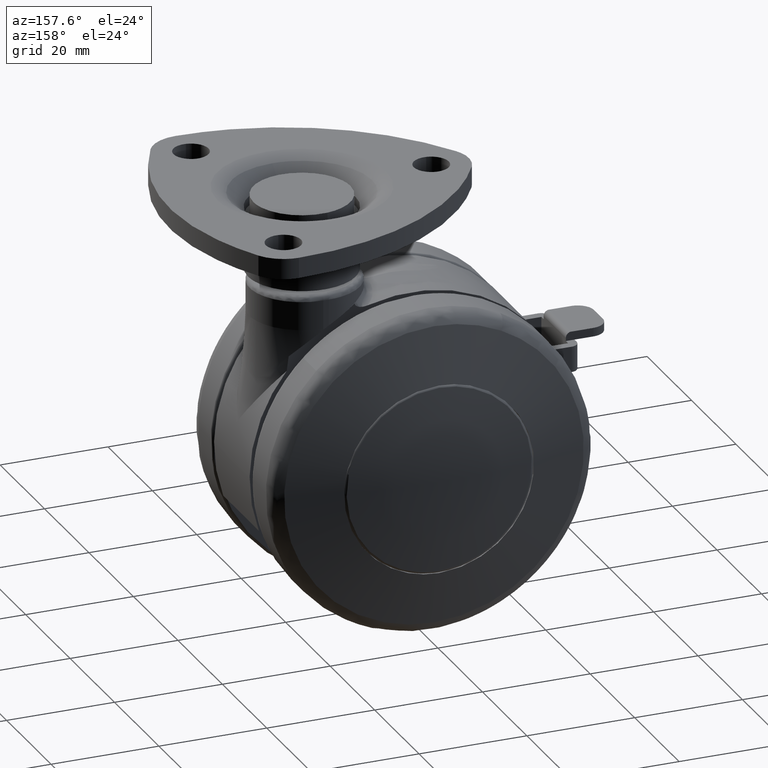
[diagram: clean part render]
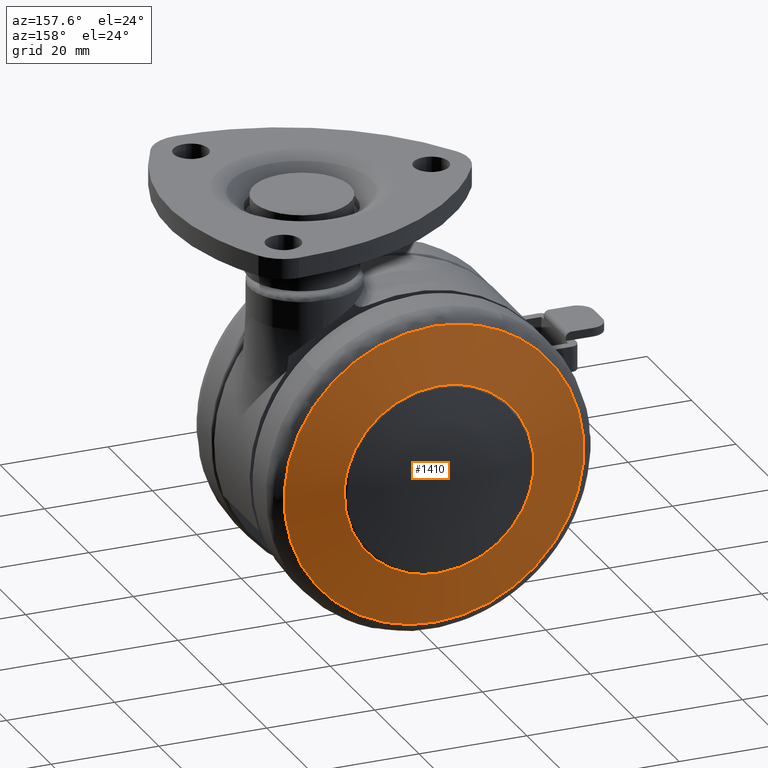
[diagram: same view with one face highlighted and labeled with its STEP entity id]
A machine part, auxiliary view. The second image highlights one B-rep face of the part: STEP entity #1410.
In plain terms, the highlighted face is a freeform B-spline surface patch.
Its self-contained STEP definition (entity closure, byte-faithful):
#70=CARTESIAN_POINT('',(17.476970833057621,-20.499999995121819,-2.077375868669970));
#71=VERTEX_POINT('',#70);
#72=CARTESIAN_POINT('',(0.0,-20.499999995122000,17.600000000000001));
#73=VERTEX_POINT('',#72);
#74=CARTESIAN_POINT('',(17.476970833057617,-20.499999995121819,-2.077375868669970));
#75=CARTESIAN_POINT('',(17.599999999999998,-20.499999995122000,-1.042331034302307));
#76=CARTESIAN_POINT('',(17.600000000000001,-20.499999995122000,-1.653219E-015));
#77=CARTESIAN_POINT('',(17.600000000000005,-20.499999995122003,17.600000000000005));
#78=CARTESIAN_POINT('',(0.0,-20.499999995122000,17.600000000000001));
#86=(BOUNDED_CURVE()B_SPLINE_CURVE(2,(#74,#75,#76,#77,#78),.UNSPECIFIED.,.F.,.U.)B_SPLINE_CURVE_WITH_KNOTS((3,2,3),(0.229562731331814,0.250000000000000,0.500000000000000),.UNSPECIFIED.)CURVE()GEOMETRIC_REPRESENTATION_ITEM()RATIONAL_B_SPLINE_CURVE((0.956027259518753,0.976056250384079,1.0,0.707106781186548,1.0))REPRESENTATION_ITEM(''));
#87=EDGE_CURVE('',#71,#73,#86,.T.);
#89=CARTESIAN_POINT('',(-17.567174160653622,-20.499999995122270,1.074426362521112));
#90=VERTEX_POINT('',#89);
#91=CARTESIAN_POINT('',(0.0,-20.499999995122000,17.600000000000001));
#92=CARTESIAN_POINT('',(-16.556453152873800,-20.499999995122000,17.599999999999998));
#93=CARTESIAN_POINT('',(-17.567174160653625,-20.499999995122266,1.074426362521112));
#101=(BOUNDED_CURVE()B_SPLINE_CURVE(2,(#91,#92,#93),.UNSPECIFIED.,.F.,.U.)B_SPLINE_CURVE_WITH_KNOTS((3,3),(0.500000000000000,0.739333236606037),.UNSPECIFIED.)CURVE()GEOMETRIC_REPRESENTATION_ITEM()RATIONAL_B_SPLINE_CURVE((1.0,0.719603671845665,0.976072629688334))REPRESENTATION_ITEM(''));
#102=EDGE_CURVE('',#73,#90,#101,.T.);
#173=CARTESIAN_POINT('',(0.0,-20.499999995122000,-17.600000000000001));
#174=VERTEX_POINT('',#173);
#175=CARTESIAN_POINT('',(0.0,-20.499999995122000,-17.600000000000001));
#176=CARTESIAN_POINT('',(15.631895671204923,-20.499999995121996,-17.600000000000001));
#177=CARTESIAN_POINT('',(17.476970833057617,-20.499999995121819,-2.077375868669970));
#185=(BOUNDED_CURVE()B_SPLINE_CURVE(2,(#175,#176,#177),.UNSPECIFIED.,.F.,.U.)B_SPLINE_CURVE_WITH_KNOTS((3,3),(0.0,0.229562731331814),.UNSPECIFIED.)CURVE()GEOMETRIC_REPRESENTATION_ITEM()RATIONAL_B_SPLINE_CURVE((1.0,0.731050530802469,0.956027259518753))REPRESENTATION_ITEM(''));
#186=EDGE_CURVE('',#174,#71,#185,.T.);
#220=CARTESIAN_POINT('',(-17.567174160653625,-20.499999995122266,1.074426362521112));
#221=CARTESIAN_POINT('',(-17.600000000000001,-20.499999995122003,0.537714628249566));
#222=CARTESIAN_POINT('',(-17.600000000000001,-20.499999995122000,-1.653219E-015));
#223=CARTESIAN_POINT('',(-17.600000000000005,-20.499999995122003,-17.600000000000005));
#224=CARTESIAN_POINT('',(0.0,-20.499999995122000,-17.600000000000001));
#232=(BOUNDED_CURVE()B_SPLINE_CURVE(2,(#220,#221,#222,#223,#224),.UNSPECIFIED.,.F.,.U.)B_SPLINE_CURVE_WITH_KNOTS((3,2,3),(0.739333236606037,0.750000000000000,1.0),.UNSPECIFIED.)CURVE()GEOMETRIC_REPRESENTATION_ITEM()RATIONAL_B_SPLINE_CURVE((0.976072629688334,0.987503109340883,1.0,0.707106781186548,1.0))REPRESENTATION_ITEM(''));
#233=EDGE_CURVE('',#90,#174,#232,.T.);
#1253=CARTESIAN_POINT('',(12.453677526877490,-18.215151407463232,24.856679944079090));
#1254=VERTEX_POINT('',#1253);
#1255=CARTESIAN_POINT('',(0.0,-18.215151576069498,27.801953607345450));
#1256=VERTEX_POINT('',#1255);
#1257=CARTESIAN_POINT('',(12.453677526877497,-18.215151407463228,24.856679944079090));
#1258=CARTESIAN_POINT('',(6.575114882392882,-18.215151576069498,27.801953607345446));
#1259=CARTESIAN_POINT('',(0.0,-18.215151576069498,27.801953607345450));
#1267=(BOUNDED_CURVE()B_SPLINE_CURVE(2,(#1257,#1258,#1259),.UNSPECIFIED.,.F.,.U.)B_SPLINE_CURVE_WITH_KNOTS((3,3),(0.423845389614883,0.500000000000000),.UNSPECIFIED.)CURVE()GEOMETRIC_REPRESENTATION_ITEM()RATIONAL_B_SPLINE_CURVE((0.875915174757439,0.910779324147275,1.0))REPRESENTATION_ITEM(''));
#1268=EDGE_CURVE('',#1254,#1256,#1267,.T.);
#1288=CARTESIAN_POINT('',(26.648778266500059,-18.215151407046889,-7.924092299576170));
#1289=VERTEX_POINT('',#1288);
#1303=CARTESIAN_POINT('',(0.0,-18.215151576069498,-27.801953607345450));
#1304=VERTEX_POINT('',#1303);
#1305=CARTESIAN_POINT('',(0.0,-18.215151576069498,-27.801953607345450));
#1306=CARTESIAN_POINT('',(20.738038010806793,-18.215151576069495,-27.801953607345450));
#1307=CARTESIAN_POINT('',(26.648778266500052,-18.215151407046886,-7.924092299576170));
#1315=(BOUNDED_CURVE()B_SPLINE_CURVE(2,(#1305,#1306,#1307),.UNSPECIFIED.,.F.,.U.)B_SPLINE_CURVE_WITH_KNOTS((3,3),(0.0,0.201473337934530),.UNSPECIFIED.)CURVE()GEOMETRIC_REPRESENTATION_ITEM()RATIONAL_B_SPLINE_CURVE((1.0,0.763959302189060,0.908365862589047))REPRESENTATION_ITEM(''));
#1316=EDGE_CURVE('',#1304,#1289,#1315,.T.);
#1318=CARTESIAN_POINT('',(0.0,-18.215151576069498,27.801953607345450));
#1319=CARTESIAN_POINT('',(-27.801953607345439,-18.215151576069495,27.801953607345439));
#1320=CARTESIAN_POINT('',(-27.801953607345450,-18.215151576069498,-1.653219E-015));
#1321=CARTESIAN_POINT('',(-27.801953607345439,-18.215151576069495,-27.801953607345439));
#1322=CARTESIAN_POINT('',(0.0,-18.215151576069498,-27.801953607345450));
#1330=(BOUNDED_CURVE()B_SPLINE_CURVE(2,(#1318,#1319,#1320,#1321,#1322),.UNSPECIFIED.,.F.,.U.)B_SPLINE_CURVE_WITH_KNOTS((3,2,3),(0.500000000000000,0.750000000000000,1.0),.UNSPECIFIED.)CURVE()GEOMETRIC_REPRESENTATION_ITEM()RATIONAL_B_SPLINE_CURVE((1.0,0.707106781186548,1.0,0.707106781186548,1.0))REPRESENTATION_ITEM(''));
#1331=EDGE_CURVE('',#1256,#1304,#1330,.T.);
#1353=CARTESIAN_POINT('',(26.648778266500052,-18.215151407046886,-7.924092299576170));
#1354=CARTESIAN_POINT('',(27.801953607345453,-18.215151576069498,-4.045955657473345));
#1355=CARTESIAN_POINT('',(27.801953607345450,-18.215151576069498,-1.653219E-015));
#1356=CARTESIAN_POINT('',(27.801953607345446,-18.215151576069495,17.166896753802490));
#1357=CARTESIAN_POINT('',(12.453677526877490,-18.215151407463232,24.856679944079083));
#1365=(BOUNDED_CURVE()B_SPLINE_CURVE(2,(#1353,#1354,#1355,#1356,#1357),.UNSPECIFIED.,.F.,.U.)B_SPLINE_CURVE_WITH_KNOTS((3,2,3),(0.201473337934530,0.250000000000000,0.423845389614883),.UNSPECIFIED.)CURVE()GEOMETRIC_REPRESENTATION_ITEM()RATIONAL_B_SPLINE_CURVE((0.908365862589047,0.943147478997488,1.0,0.796327457039273,0.875915174757439))REPRESENTATION_ITEM(''));
#1366=EDGE_CURVE('',#1289,#1254,#1365,.T.);
#1374=CARTESIAN_POINT('',(-29.809327307294737,-13.072937862196540,-29.809394484519281));
#1375=CARTESIAN_POINT('',(-15.231509735195463,-17.438577366083301,-30.463088120752563));
#1376=CARTESIAN_POINT('',(15.230824602223839,-17.438577366083301,-30.463088120752563));
#1377=CARTESIAN_POINT('',(29.808043987401366,-13.073322170776407,-29.809452029369886));
#1378=CARTESIAN_POINT('',(-30.463022481277982,-17.438597474091434,-15.231545565823192));
#1379=CARTESIAN_POINT('',(-15.573013680460109,-21.999999999999972,-15.573048775241899));
#1380=CARTESIAN_POINT('',(15.572313186200150,-21.999999999999972,-15.573048775241899));
#1381=CARTESIAN_POINT('',(30.461712308713469,-17.438998822670261,-15.231575613999606));
#1382=CARTESIAN_POINT('',(-30.463022481277982,-17.438597474091434,15.231547623658559));
#1383=CARTESIAN_POINT('',(-15.573013680460109,-21.999999999999972,15.573050879215550));
#1384=CARTESIAN_POINT('',(15.572313186200160,-21.999999999999972,15.573050879215540));
#1385=CARTESIAN_POINT('',(30.461712308713469,-17.438998822670261,15.231577671839021));
#1386=CARTESIAN_POINT('',(-29.809327134452012,-13.072936707877846,29.809398339030164));
#1387=CARTESIAN_POINT('',(-15.231509644942253,-17.438576160583139,30.463092055916043));
#1388=CARTESIAN_POINT('',(15.230824511974690,-17.438576160583139,30.463092055916032));
#1389=CARTESIAN_POINT('',(29.808043814565718,-13.073321016453241,29.809455883887832));
#1397=(BOUNDED_SURFACE()B_SPLINE_SURFACE(2,2,((#1374,#1378,#1382,#1386),(#1375,#1379,#1383,#1387),(#1376,#1380,#1384,#1388),(#1377,#1381,#1385,#1389)),.UNSPECIFIED.,.F.,.F.,.U.)B_SPLINE_SURFACE_WITH_KNOTS((3,1,3),(3,1,3),(22.879937403011319,52.980574481842218,83.079857595157620),(22.879869569301601,52.980574481842218,83.081283461093903),.UNSPECIFIED.)GEOMETRIC_REPRESENTATION_ITEM()RATIONAL_B_SPLINE_SURFACE(((1.044841671193915,1.022420785070228,1.022420785070228,1.044841677252196),(1.022420886123687,1.0,1.0,1.022420892181968),(1.022420886123687,1.0,1.0,1.022420892181968),(1.044839654207564,1.022418768083877,1.022418768083877,1.044839660265846)))REPRESENTATION_ITEM('')SURFACE());
#1398=ORIENTED_EDGE('',*,*,#1316,.T.);
#1399=ORIENTED_EDGE('',*,*,#1366,.T.);
#1400=ORIENTED_EDGE('',*,*,#1268,.T.);
#1401=ORIENTED_EDGE('',*,*,#1331,.T.);
#1402=EDGE_LOOP('',(#1398,#1399,#1400,#1401));
#1403=FACE_OUTER_BOUND('',#1402,.T.);
#1404=ORIENTED_EDGE('',*,*,#102,.F.);
#1405=ORIENTED_EDGE('',*,*,#87,.F.);
#1406=ORIENTED_EDGE('',*,*,#186,.F.);
#1407=ORIENTED_EDGE('',*,*,#233,.F.);
#1408=EDGE_LOOP('',(#1404,#1405,#1406,#1407));
#1409=FACE_BOUND('',#1408,.T.);
#1410=ADVANCED_FACE('',(#1403,#1409),#1397,.T.);